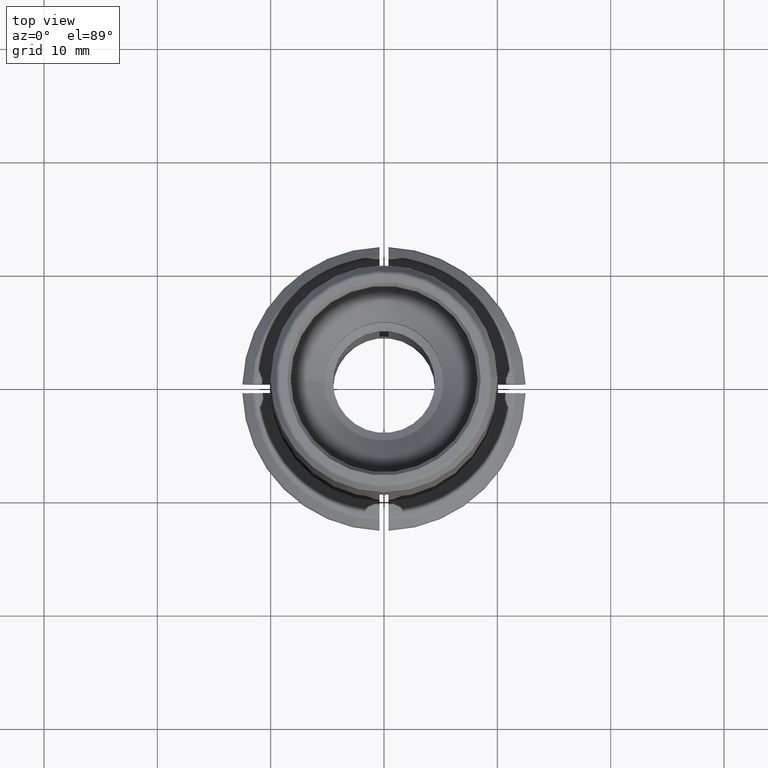
[diagram: clean part render]
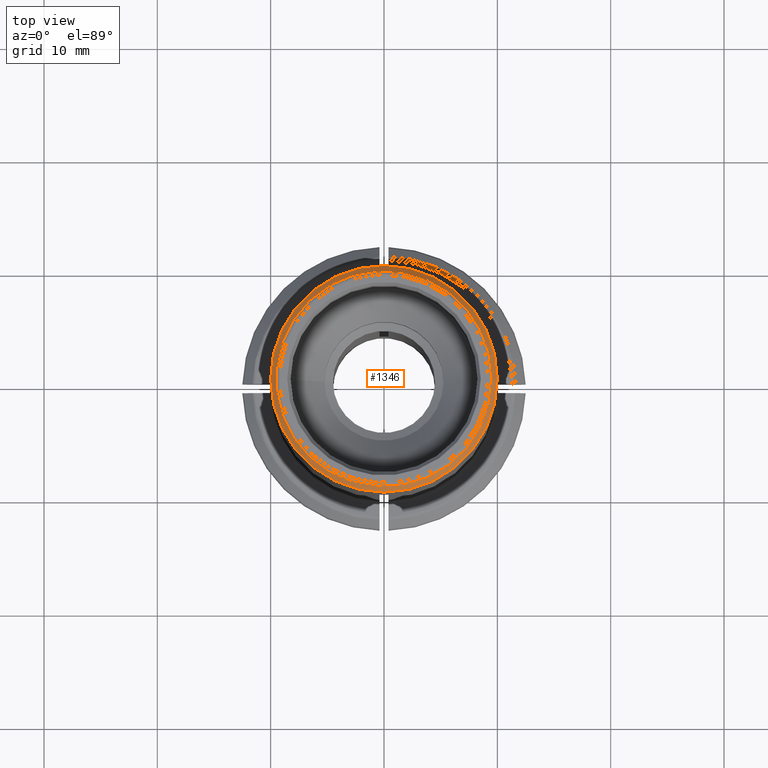
[diagram: same view with one face highlighted and labeled with its STEP entity id]
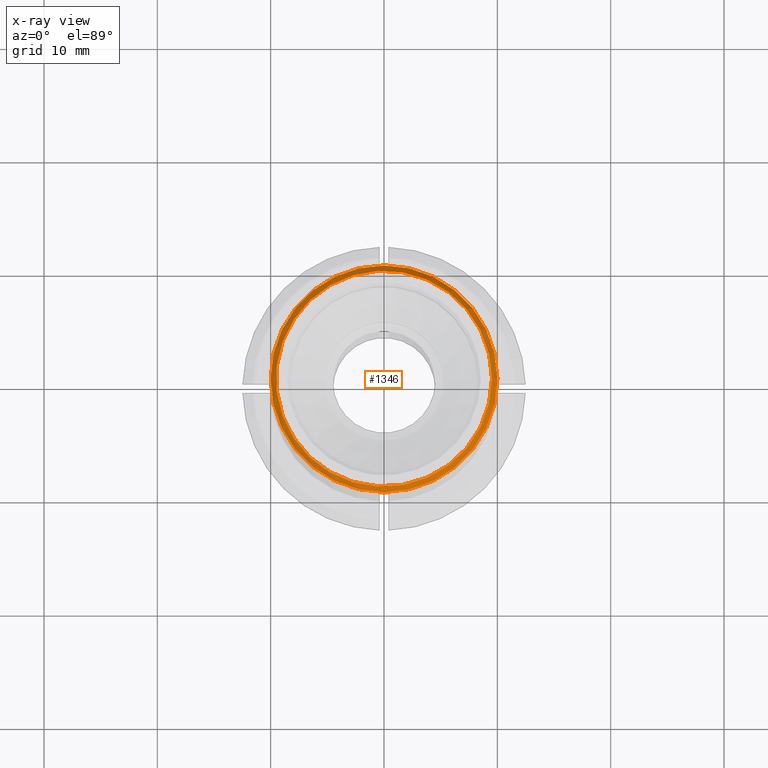
[diagram: x-ray of the same camera — body ghosted, the highlighted face saturated]
A machine part, top view. The second image highlights one B-rep face of the part: STEP entity #1346.
The next image is the same camera in x-ray: the body ghosted, the highlighted face saturated — about 0% of this face is hidden behind the body in this view.
In plain terms, the highlighted conical surface has half-angle 30 deg.
Its self-contained STEP definition (entity closure, byte-faithful):
#485=ORIENTED_EDGE('',*,*,#853,.T.);
#486=ORIENTED_EDGE('',*,*,#803,.T.);
#803=EDGE_CURVE('',#977,#977,#1079,.T.);
#853=EDGE_CURVE('',#1023,#1023,#1099,.F.);
#977=VERTEX_POINT('',#2257);
#1023=VERTEX_POINT('',#2392);
#1079=CIRCLE('',#1456,9.99641016151378);
#1099=CIRCLE('',#1499,9.53038475772934);
#1162=EDGE_LOOP('',(#485));
#1163=EDGE_LOOP('',(#486));
#1252=FACE_BOUND('',#1162,.T.);
#1253=FACE_BOUND('',#1163,.T.);
#1296=CONICAL_SURFACE('',#1498,9.41491470389141,0.5235987755983);
#1346=ADVANCED_FACE('',(#1252,#1253),#1296,.T.);
#1456=AXIS2_PLACEMENT_3D('',#2256,#1694,#1695);
#1498=AXIS2_PLACEMENT_3D('',#2390,#1792,#1793);
#1499=AXIS2_PLACEMENT_3D('',#2391,#1794,#1795);
#1694=DIRECTION('',(0.,0.,1.));
#1695=DIRECTION('',(1.,0.,0.));
#1792=DIRECTION('',(0.,0.,-1.));
#1793=DIRECTION('',(-1.,0.,0.));
#1794=DIRECTION('',(0.,0.,1.));
#1795=DIRECTION('',(1.,0.,0.));
#2256=CARTESIAN_POINT('',(0.,0.,48.9928203230276));
#2257=CARTESIAN_POINT('',(9.99641016151378,0.,48.9928203230276));
#2390=CARTESIAN_POINT('',(0.,0.,50.));
#2391=CARTESIAN_POINT('',(0.,0.,49.8));
#2392=CARTESIAN_POINT('',(9.53038475772934,0.,49.8));